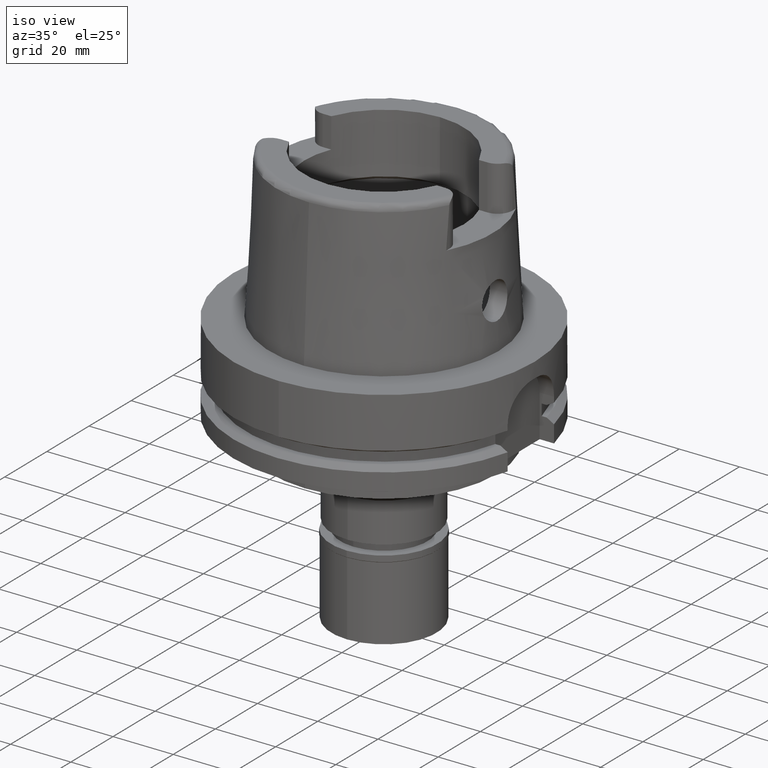
[diagram: clean part render]
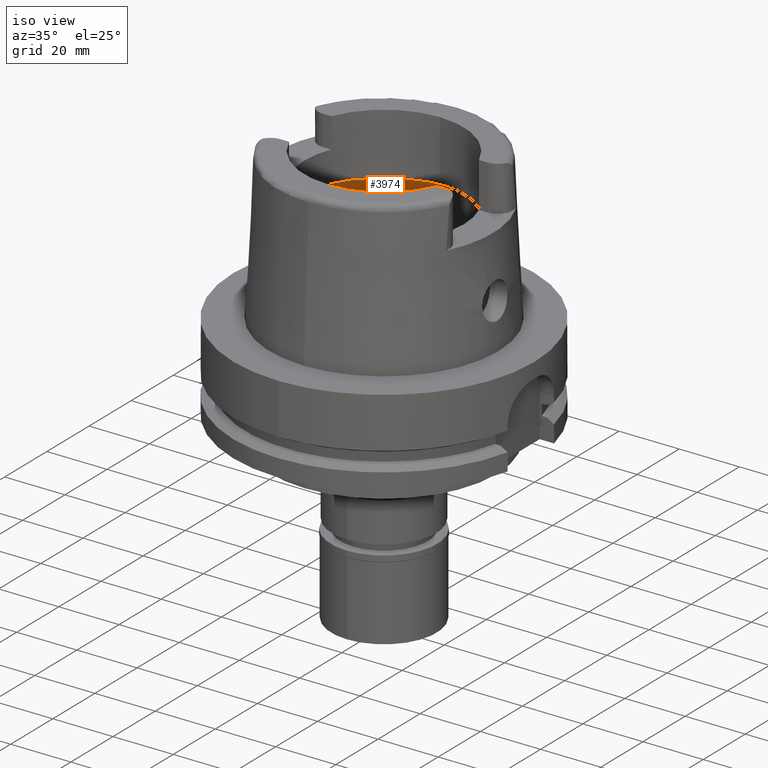
[diagram: same view with one face highlighted and labeled with its STEP entity id]
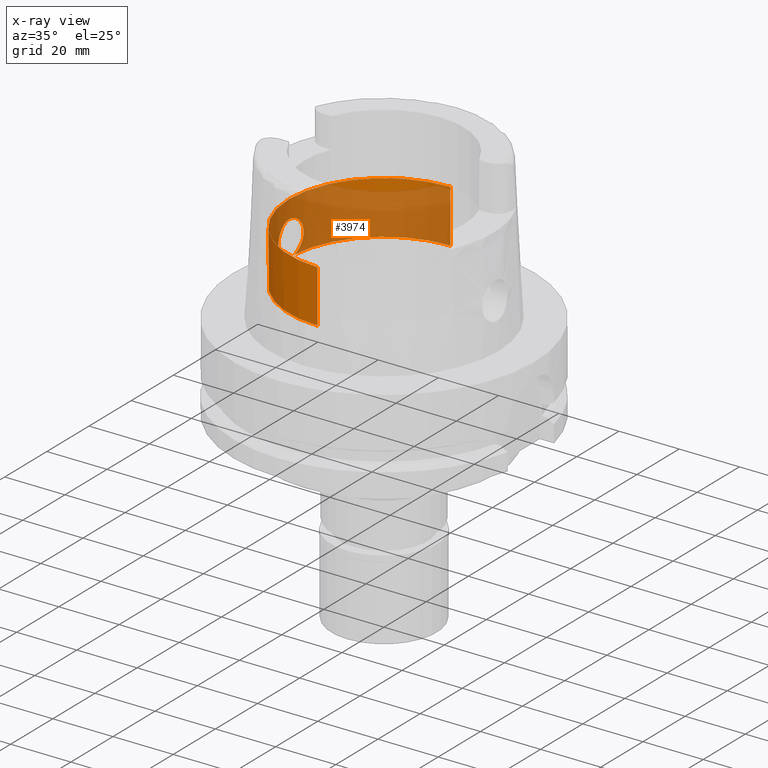
[diagram: x-ray of the same camera — body ghosted, the highlighted face saturated]
A machine part, iso view. The second image highlights one B-rep face of the part: STEP entity #3974.
The next image is the same camera in x-ray: the body ghosted, the highlighted face saturated — about 68% of this face is hidden behind the body in this view.
In plain terms, the highlighted cylindrical surface (partial cylindrical patch) has radius 31.5 mm, axis along (0, 0, 1).
Its self-contained STEP definition (entity closure, byte-faithful):
#9 = FACE_OUTER_BOUND ( 'NONE', #5130, .T. ) ;
#18 = CARTESIAN_POINT ( 'NONE',  ( -31.49468644051406940, -0.6600454947056628718, 20.97327599051144276 ) ) ;
#41 = CARTESIAN_POINT ( 'NONE',  ( -31.20652100758928427, -4.300627620504848814, 19.19795939117561900 ) ) ;
#72 = CARTESIAN_POINT ( 'NONE',  ( -31.44524542998461314, -1.855567973153091854, 20.70615959649734350 ) ) ;
#101 = CARTESIAN_POINT ( 'NONE',  ( -31.27636264282918077, -3.746839878336114982, 19.68629373320086984 ) ) ;
#103 = CARTESIAN_POINT ( 'NONE',  ( -31.08045232837232064, 5.124108468036652653, 18.12146298428985958 ) ) ;
#118 = CARTESIAN_POINT ( 'NONE',  ( -31.50000000000000000, 0.0000000000000000000, 21.00000000000000000 ) ) ;
#124 = CARTESIAN_POINT ( 'NONE',  ( -31.39148165064910145, -2.622849304399081038, 9.597683857181619871 ) ) ;
#126 = CARTESIAN_POINT ( 'NONE',  ( -30.94717698794870486, 5.875673112436035517, 16.21513602681367061 ) ) ;
#151 = CARTESIAN_POINT ( 'NONE',  ( -31.15164714185233663, 4.671955733681195433, 18.76497636839761540 ) ) ;
#182 = CARTESIAN_POINT ( 'NONE',  ( -31.04517455347458466, -5.333672063953171616, 12.25191874798690428 ) ) ;
#184 = CARTESIAN_POINT ( 'NONE',  ( -31.02203002786776054, 5.468953737495468204, 17.47451872612846202 ) ) ;
#208 = CARTESIAN_POINT ( 'NONE',  ( -31.17027987182837023, 4.545726517977771053, 18.91618835111207986 ) ) ;
#244 = AXIS2_PLACEMENT_3D ( 'NONE', #4041, #5413, #1569 ) ;
#261 = LINE ( 'NONE', #2016, #782 ) ;
#283 = CARTESIAN_POINT ( 'NONE',  ( -31.26933825255434485, 3.804432712328855715, 19.63965587572132776 ) ) ;
#309 = CIRCLE ( 'NONE', #1827, 31.50000000000000000 ) ;
#335 = CARTESIAN_POINT ( 'NONE',  ( 0.0000000000000000000, 0.0000000000000000000, -85.45000000000000284 ) ) ;
#395 = CARTESIAN_POINT ( 'NONE',  ( -31.14017704450538204, -4.746532300470788002, 18.67423543242131245 ) ) ;
#427 = CARTESIAN_POINT ( 'NONE',  ( -30.94709211533567483, -5.876117804885137019, 16.21299367275693015 ) ) ;
#447 = CIRCLE ( 'NONE', #2771, 31.50000000000000000 ) ;
#461 = CARTESIAN_POINT ( 'NONE',  ( -31.23935720786402825, -4.052724198441658210, 19.43774687240028243 ) ) ;
#519 = CARTESIAN_POINT ( 'NONE',  ( -30.95204032685515827, -5.850111470413988712, 16.33371732093431206 ) ) ;
#522 = CARTESIAN_POINT ( 'NONE',  ( -31.09978699592496554, 5.012223274598265554, 11.69742067420033393 ) ) ;
#549 = CARTESIAN_POINT ( 'NONE',  ( -31.40918884336000616, -2.390158196043999705, 9.496624327025999790 ) ) ;
#551 = CARTESIAN_POINT ( 'NONE',  ( -31.04518756500798204, 5.333599716063099905, 12.25177938394907429 ) ) ;
#577 = CARTESIAN_POINT ( 'NONE',  ( -30.97629757941105311, 5.723226995904576064, 16.83354071632904692 ) ) ;
#602 = CARTESIAN_POINT ( 'NONE',  ( -30.99218077062603527, 5.635534246175447848, 12.91275586968483502 ) ) ;
#630 = CARTESIAN_POINT ( 'NONE',  ( -31.14924036004105190, -4.695482276926491672, 11.25898190106387275 ) ) ;
#633 = CARTESIAN_POINT ( 'NONE',  ( -30.94201439793485875, 5.902945666998585139, 13.92002647098651202 ) ) ;
#655 = CARTESIAN_POINT ( 'NONE',  ( -31.18852596536192578, -4.421805925675936777, 10.94287546114234111 ) ) ;
#683 = CARTESIAN_POINT ( 'NONE',  ( -31.27230093115360177, 3.780430856862598166, 19.65923644008503857 ) ) ;
#709 = CARTESIAN_POINT ( 'NONE',  ( -31.30987125798585780, 3.474931509407817476, 19.90611039168592100 ) ) ;
#731 = CARTESIAN_POINT ( 'NONE',  ( -31.43292578855548669, 2.053063081826126623, 20.63786886506169793 ) ) ;
#736 = LINE ( 'NONE', #1599, #3484 ) ;
#754 = CARTESIAN_POINT ( 'NONE',  ( -31.25908688078983388, 3.886879296894486746, 19.57114722000008911 ) ) ;
#782 = VECTOR ( 'NONE', #1520, 1000.000000000000000 ) ;
#817 = CARTESIAN_POINT ( 'NONE',  ( -30.94815925833596282, -5.870505071417088772, 16.23986343966526036 ) ) ;
#843 = CARTESIAN_POINT ( 'NONE',  ( -30.98609954830845226, -5.668915743430571474, 16.97298943556175743 ) ) ;
#844 = DIRECTION ( 'NONE',  ( 0.0000000000000000000, -4.980251297749999745E-14, 1.000000000000000000 ) ) ;
#874 = CARTESIAN_POINT ( 'NONE',  ( -31.27401061059180520, -3.766443886681985376, 19.67055226672428958 ) ) ;
#904 = CARTESIAN_POINT ( 'NONE',  ( -31.07990292945971333, -5.127433926419683097, 18.11601709967625951 ) ) ;
#931 = CARTESIAN_POINT ( 'NONE',  ( -31.28796342650734630, -3.648789918520191300, 19.76346963162040993 ) ) ;
#933 = CARTESIAN_POINT ( 'NONE',  ( -30.93370143692390783, 5.946638204858383681, 15.80298496135365127 ) ) ;
#960 = CARTESIAN_POINT ( 'NONE',  ( -31.23702435164256741, 4.061563625462893512, 10.58368020677053067 ) ) ;
#990 = CARTESIAN_POINT ( 'NONE',  ( -31.08612902596978955, 5.094440502647507252, 11.82743776079524523 ) ) ;
#1009 = CARTESIAN_POINT ( 'NONE',  ( -31.08512885622776523, -5.105021580237604439, 11.82893627629948696 ) ) ;
#1011 = CARTESIAN_POINT ( 'NONE',  ( -31.20786932598961627, 4.280700128201909038, 19.20773368896920275 ) ) ;
#1033 = CARTESIAN_POINT ( 'NONE',  ( -31.30906248329323915, -3.469223213293763930, 10.09274890671794367 ) ) ;
#1036 = CARTESIAN_POINT ( 'NONE',  ( -31.04979418184917606, 5.307644725518416706, 17.79955785724262185 ) ) ;
#1068 = CARTESIAN_POINT ( 'NONE',  ( -31.43628422217685525, 2.000932791778182729, 20.65653503280562120 ) ) ;
#1092 = CARTESIAN_POINT ( 'NONE',  ( 0.0000000000000000000, -31.50000000000000000, 9.496624327025999790 ) ) ;
#1155 = B_SPLINE_CURVE_WITH_KNOTS ( 'NONE', 3,
 ( #2615, #4342, #2193, #1773, #2927, #4645, #2500, #1238, #2961, #1903, #960, #4817, #5215, #1357, #4847, #522, #990, #3154, #2698, #2752, #2671, #2641, #4400, #4792, #4447, #551, #3546, #2253, #602, #2720, #1464, #5264, #633, #5300, #1409, #2276, #3977, #3948, #4424, #3068, #4367, #933, #4000, #1441, #2224, #2302, #4034, #126, #4895, #577, #3179, #184, #1876, #1036, #4477, #3607, #5239, #5328, #2332, #1847, #103, #3578, #1819, #3127, #1798, #151, #3525, #4063, #208, #1381, #3090, #4870, #1011, #4589, #2413, #754, #4120, #283, #4146, #683, #709, #1173, #5381, #5408, #4088, #2459, #4563, #731, #2784, #5351, #1068, #1930, #1991, #4506 ),
 .UNSPECIFIED., .F., .F.,
 ( 4, 2, 2, 2, 1, 1, 2, 2, 2, 2, 2, 1, 1, 1, 1, 2, 2, 2, 2, 1, 1, 2, 2, 2, 2, 1, 1, 1, 2, 2, 2, 2, 2, 1, 1, 1, 2, 2, 2, 2, 1, 1, 2, 2, 2, 1, 1, 1, 2, 2, 2, 2, 1, 1, 1, 2, 2, 4 ),
 ( 0.0000000000000000000, 0.06250000000002729761, 0.09375000000004103662, 0.1093750000000478090, 0.1171875000000511396, 0.1210937500000529021, 0.1230468750000538458, 0.1250000000000547895, 0.1875000000000871248, 0.2187500000001033063, 0.2343750000001116052, 0.2421875000001158795, 0.2460937500001181000, 0.2480468750001191269, 0.2490234375001196543, 0.2495117187501197098, 0.2500000000001197931, 0.3125000000001008083, 0.3437500000000913158, 0.3593750000000867084, 0.3671875000000843769, 0.3710937500000833777, 0.3750000000000823230, 0.4375000000000653366, 0.4687500000000570100, 0.4843750000000529576, 0.4921875000000506262, 0.4960937500000494049, 0.4980468750000488498, 0.5000000000000481837, 0.5625000000000489608, 0.5937500000000492939, 0.6093750000000490719, 0.6171875000000490719, 0.6210937500000489608, 0.6230468750000489608, 0.6240234375000487388, 0.6250000000000485167, 0.6562500000000418554, 0.6718750000000381917, 0.6796875000000364153, 0.6835937500000353051, 0.6855468750000347500, 0.6875000000000341949, 0.7187500000000330846, 0.7343750000000323075, 0.7421875000000319744, 0.7460937500000317524, 0.7480468750000316414, 0.7500000000000314193, 0.8125000000000206501, 0.8437500000000152101, 0.8593750000000123235, 0.8671875000000109912, 0.8710937500000103251, 0.8730468750000102141, 0.8750000000000099920, 1.000000000000000000 ),
 .UNSPECIFIED. ) ;
#1173 = CARTESIAN_POINT ( 'NONE',  ( -31.34171231235570332, 3.171484424890949061, 20.10473325925496724 ) ) ;
#1236 = CARTESIAN_POINT ( 'NONE',  ( -30.94929144269133303, -5.864552954792189077, 16.26793568257465239 ) ) ;
#1238 = CARTESIAN_POINT ( 'NONE',  ( -31.25700145807026331, 3.904305459107029641, 10.44379346363824901 ) ) ;
#1262 = DIRECTION ( 'NONE',  ( 0.0000000000000000000, 0.0000000000000000000, -1.000000000000000000 ) ) ;
#1269 = CARTESIAN_POINT ( 'NONE',  ( -31.46014830385537309, -1.583260562109054526, 20.78798815535644451 ) ) ;
#1283 = EDGE_CURVE ( 'NONE', #1461, #5158, #447, .T. ) ;
#1293 = CARTESIAN_POINT ( 'NONE',  ( -31.27987526755534375, -3.717429863153318248, 19.70975714552560731 ) ) ;
#1325 = CARTESIAN_POINT ( 'NONE',  ( -31.10503846080714396, -4.972285585372452132, 18.35995831779197474 ) ) ;
#1355 = CARTESIAN_POINT ( 'NONE',  ( -31.11662495128415173, -4.898526144868738719, 18.46580947703500186 ) ) ;
#1357 = CARTESIAN_POINT ( 'NONE',  ( -31.18536093560938482, 4.455197651179235052, 10.95194643721960226 ) ) ;
#1379 = CARTESIAN_POINT ( 'NONE',  ( -31.03365569934316426, -5.400408291021908447, 12.38480855497167532 ) ) ;
#1381 = CARTESIAN_POINT ( 'NONE',  ( -31.17269419759469429, 4.529133811893659711, 18.93536627159326358 ) ) ;
#1409 = CARTESIAN_POINT ( 'NONE',  ( -30.93594940397671778, 5.934465969104229188, 14.11541048519231900 ) ) ;
#1410 = ORIENTED_EDGE ( 'NONE', *, *, #2448, .F. ) ;
#1441 = CARTESIAN_POINT ( 'NONE',  ( -30.94203852206575078, 5.902744183301644298, 16.07741215369863852 ) ) ;
#1461 = VERTEX_POINT ( 'NONE', #5251 ) ;
#1462 = CARTESIAN_POINT ( 'NONE',  ( -30.95594804819575074, -5.831170078798176171, 13.54648142423479484 ) ) ;
#1464 = CARTESIAN_POINT ( 'NONE',  ( -30.95645738249756462, 5.827459834601833144, 13.56218151347652956 ) ) ;
#1520 = DIRECTION ( 'NONE',  ( 0.0000000000000000000, 4.980251297749999745E-14, 1.000000000000000000 ) ) ;
#1569 = DIRECTION ( 'NONE',  ( -0.9971171061384295209, 0.07587803796965221503, 0.0000000000000000000 ) ) ;
#1599 = CARTESIAN_POINT ( 'NONE',  ( 0.0000000000000000000, 31.50000000000000000, 9.496624327025999790 ) ) ;
#1682 = CARTESIAN_POINT ( 'NONE',  ( -30.94741467073410135, -5.874420937595340675, 16.22117557725898607 ) ) ;
#1705 = DIRECTION ( 'NONE',  ( 0.0000000000000000000, 0.0000000000000000000, 1.000000000000000000 ) ) ;
#1712 = CARTESIAN_POINT ( 'NONE',  ( -30.93383822146184414, -5.945492396760784892, 14.19284567887579840 ) ) ;
#1739 = CARTESIAN_POINT ( 'NONE',  ( -31.45367240323188796, -1.709128341393223227, 20.75259253078951005 ) ) ;
#1771 = CARTESIAN_POINT ( 'NONE',  ( -31.30795952077320621, -3.472431625062612159, 19.89404409351084624 ) ) ;
#1773 = CARTESIAN_POINT ( 'NONE',  ( -31.32349421945763979, 3.326977616146763683, 10.00394166346461411 ) ) ;
#1798 = CARTESIAN_POINT ( 'NONE',  ( -31.13842003553979509, 4.759732663390746410, 18.65428716733203984 ) ) ;
#1819 = CARTESIAN_POINT ( 'NONE',  ( -31.10650468080083897, 4.964778793398989976, 18.37349596823237263 ) ) ;
#1827 = AXIS2_PLACEMENT_3D ( 'NONE', #3820, #1262, #2888 ) ;
#1847 = CARTESIAN_POINT ( 'NONE',  ( -31.07980420771849239, 5.128043619271326570, 18.11499662260633059 ) ) ;
#1873 = CARTESIAN_POINT ( 'NONE',  ( -30.98388071451327619, -5.680281154066573635, 13.06009763254756884 ) ) ;
#1876 = CARTESIAN_POINT ( 'NONE',  ( -31.04260824686617681, 5.349746934620963401, 17.71815787119146179 ) ) ;
#1903 = CARTESIAN_POINT ( 'NONE',  ( -31.24085124214130715, 4.032036102940400824, 10.55658598179121554 ) ) ;
#1930 = CARTESIAN_POINT ( 'NONE',  ( -31.47898036195524796, 1.327503304833642650, 20.89336680146315217 ) ) ;
#1991 = CARTESIAN_POINT ( 'NONE',  ( -31.50000000000000000, 0.6498053776088208444, 21.00000000000000000 ) ) ;
#2016 = CARTESIAN_POINT ( 'NONE',  ( 0.0000000000000000000, -31.50000000000000000, 9.496624327025999790 ) ) ;
#2100 = CARTESIAN_POINT ( 'NONE',  ( -30.92613444811745183, -5.986400588389713562, 15.52780896364699181 ) ) ;
#2132 = CARTESIAN_POINT ( 'NONE',  ( -31.39716637267921229, -2.554710157625146749, 20.43975329637592608 ) ) ;
#2160 = ORIENTED_EDGE ( 'NONE', *, *, #3972, .T. ) ;
#2193 = CARTESIAN_POINT ( 'NONE',  ( -31.36782107533199593, 2.891018643074693362, 9.731268933887402994 ) ) ;
#2224 = CARTESIAN_POINT ( 'NONE',  ( -30.94471645955688288, 5.888636474622442663, 16.15098327757463892 ) ) ;
#2253 = CARTESIAN_POINT ( 'NONE',  ( -31.01593959991766525, 5.503665356997867519, 12.58225702735309603 ) ) ;
#2274 = CARTESIAN_POINT ( 'NONE',  ( -31.13176651340489087, -4.810074858820290622, 11.40940082003571199 ) ) ;
#2276 = CARTESIAN_POINT ( 'NONE',  ( -30.93486335740178106, 5.940124237766928772, 14.15424058500201632 ) ) ;
#2300 = CARTESIAN_POINT ( 'NONE',  ( -31.22685469610360443, -4.139113351453512557, 10.65627274408642755 ) ) ;
#2302 = CARTESIAN_POINT ( 'NONE',  ( -30.94591243324782326, 5.882335519597387652, 16.18247344572034763 ) ) ;
#2332 = CARTESIAN_POINT ( 'NONE',  ( -31.07878861961194872, 5.134204424624162932, 18.10483175810990986 ) ) ;
#2413 = CARTESIAN_POINT ( 'NONE',  ( -31.24473887855333487, 4.000517461547971720, 19.47311214296152926 ) ) ;
#2448 = EDGE_CURVE ( 'NONE', #4308, #5079, #3331, .T. ) ;
#2459 = CARTESIAN_POINT ( 'NONE',  ( -31.42012672215657787, 2.242248292184319869, 20.56623014344636502 ) ) ;
#2500 = CARTESIAN_POINT ( 'NONE',  ( -31.27140842950219124, 3.786874586289304290, 10.34488911542267431 ) ) ;
#2520 = CYLINDRICAL_SURFACE ( 'NONE', #2819, 31.50000000000000000 ) ;
#2521 = CARTESIAN_POINT ( 'NONE',  ( -31.40918884336000616, 2.390158196043999705, 9.496624327025999790 ) ) ;
#2525 = CARTESIAN_POINT ( 'NONE',  ( -30.96378076329180473, -5.788289250639437000, 16.58184719945438346 ) ) ;
#2551 = CARTESIAN_POINT ( 'NONE',  ( -30.93223130495509565, -5.953905832141606957, 14.25740174174625174 ) ) ;
#2584 = CARTESIAN_POINT ( 'NONE',  ( -31.50000000000000000, 0.0000000000000000000, 21.00000000000000000 ) ) ;
#2613 = CARTESIAN_POINT ( 'NONE',  ( -31.43650139800056209, -1.997495828628162773, 20.65774069109803435 ) ) ;
#2615 = CARTESIAN_POINT ( 'NONE',  ( -31.40918884336000616, 2.390158196043999705, 9.496624327025999790 ) ) ;
#2639 = CARTESIAN_POINT ( 'NONE',  ( -31.01915017969999155, -5.486385384685982025, 17.45290592696035503 ) ) ;
#2641 = CARTESIAN_POINT ( 'NONE',  ( -31.04850011745141813, 5.314376854699960795, 12.21473573738629881 ) ) ;
#2669 = CARTESIAN_POINT ( 'NONE',  ( -31.22256165172294828, -4.171558558338042566, 10.68726830910274650 ) ) ;
#2671 = CARTESIAN_POINT ( 'NONE',  ( -31.05226995741741902, 5.292553792095582743, 12.17331238083769485 ) ) ;
#2696 = CARTESIAN_POINT ( 'NONE',  ( -31.04562722139407782, -5.331037979714587038, 12.24681233616359144 ) ) ;
#2698 = CARTESIAN_POINT ( 'NONE',  ( -31.06313410853661239, 5.229627001597104474, 12.05814847437388337 ) ) ;
#2718 = CARTESIAN_POINT ( 'NONE',  ( -31.20452329170475281, -4.305544797498906284, 10.82083252444149224 ) ) ;
#2720 = CARTESIAN_POINT ( 'NONE',  ( -30.96440537365845458, 5.785447828781178359, 13.40076518444319476 ) ) ;
#2747 = CARTESIAN_POINT ( 'NONE',  ( -31.02180097006672455, -5.468465866573166245, 12.52812534895325314 ) ) ;
#2752 = CARTESIAN_POINT ( 'NONE',  ( -31.05577131272167790, 5.272304599487643628, 12.13579392258745138 ) ) ;
#2771 = AXIS2_PLACEMENT_3D ( 'NONE', #3454, #4691, #4633 ) ;
#2774 = VERTEX_POINT ( 'NONE', #4527 ) ;
#2780 = CARTESIAN_POINT ( 'NONE',  ( -31.01237316506943031, -5.521805440622297390, 12.65106730445606509 ) ) ;
#2784 = CARTESIAN_POINT ( 'NONE',  ( -31.43466007980396526, 2.026249571630781343, 20.64751295059762271 ) ) ;
#2819 = AXIS2_PLACEMENT_3D ( 'NONE', #335, #1705, #3431 ) ;
#2834 = CARTESIAN_POINT ( 'NONE',  ( -31.40918884336000616, -2.390158196043999705, 9.496624327025999790 ) ) ;
#2888 = DIRECTION ( 'NONE',  ( 0.0000000000000000000, -1.000000000000000000, 0.0000000000000000000 ) ) ;
#2927 = CARTESIAN_POINT ( 'NONE',  ( -31.30724070862692798, 3.477866724378012364, 10.10695117549598976 ) ) ;
#2937 = ORIENTED_EDGE ( 'NONE', *, *, #1283, .T. ) ;
#2961 = CARTESIAN_POINT ( 'NONE',  ( -31.24965941995998264, 3.963184621887910097, 10.49466748885878253 ) ) ;
#2986 = CARTESIAN_POINT ( 'NONE',  ( -31.27265209056394468, -3.777709567707046467, 19.66144031637864487 ) ) ;
#3011 = CARTESIAN_POINT ( 'NONE',  ( -31.34098551244852260, -3.160810807882615148, 20.10334621398456179 ) ) ;
#3040 = CARTESIAN_POINT ( 'NONE',  ( -31.08534261813155197, -5.094287805680574266, 18.17002218991891027 ) ) ;
#3066 = CARTESIAN_POINT ( 'NONE',  ( -31.35601783981819324, -3.006815719328559400, 20.19503842225686441 ) ) ;
#3068 = CARTESIAN_POINT ( 'NONE',  ( -30.92535214901938900, 5.990466605842864389, 15.37852798002795041 ) ) ;
#3090 = CARTESIAN_POINT ( 'NONE',  ( -31.17410825468628133, 4.519387171781214185, 18.94654969553063495 ) ) ;
#3104 = EDGE_CURVE ( 'NONE', #3409, #2774, #5546, .T. ) ;
#3127 = CARTESIAN_POINT ( 'NONE',  ( -31.13008152591636346, 4.813936277585570522, 18.58237259286520171 ) ) ;
#3154 = CARTESIAN_POINT ( 'NONE',  ( -31.06852275268848018, 5.198271954122639649, 12.00290349001857670 ) ) ;
#3177 = CARTESIAN_POINT ( 'NONE',  ( -31.17834307136099170, -4.493934286040984993, 11.02316115612916114 ) ) ;
#3179 = CARTESIAN_POINT ( 'NONE',  ( -31.00961732980295693, 5.538953753483943920, 17.31285343635041940 ) ) ;
#3295 = EDGE_CURVE ( 'NONE', #2774, #1461, #736, .T. ) ;
#3331 = B_SPLINE_CURVE_WITH_KNOTS ( 'NONE', 3,
 ( #2584, #3914, #18, #4733, #3860, #1269, #1739, #72, #4673, #3886, #5180, #3377, #2613, #4340, #2132, #3066, #3011, #5213, #1771, #3500, #931, #1293, #101, #874, #2986, #461, #41, #3464, #395, #1355, #1325, #5092, #3040, #4700, #4765, #904, #3946, #2639, #843, #5148, #2525, #4365, #519, #1236, #817, #1682, #427, #4254, #2100, #3828, #5550, #3410, #5122, #3438, #2551, #4283, #1712, #4921, #1462, #1873, #4032, #2780, #2747, #1379, #5237, #5298, #3604, #182, #2696, #4503, #4085, #1009, #2274, #630, #3177, #655, #2718, #5326, #2669, #2300, #3998, #4398, #4893, #1033, #3576, #124, #549 ),
 .UNSPECIFIED., .F., .F.,
 ( 4, 2, 2, 1, 1, 1, 1, 2, 2, 2, 2, 2, 1, 1, 2, 2, 2, 2, 1, 1, 1, 2, 2, 2, 2, 1, 1, 1, 2, 2, 2, 2, 1, 1, 2, 2, 2, 2, 1, 1, 1, 1, 1, 2, 2, 2, 2, 2, 1, 1, 2, 2, 2, 4 ),
 ( 0.0000000000000000000, 0.06250000000001081080, 0.09375000000001619538, 0.1093750000000188460, 0.1171875000000201922, 0.1210937500000207750, 0.1230468750000210248, 0.1240234375000211775, 0.1250000000000213163, 0.1875000000000345557, 0.2187500000000413003, 0.2343750000000445199, 0.2421875000000462130, 0.2460937500000470457, 0.2480468750000475731, 0.2500000000000481282, 0.3125000000000746070, 0.3437500000000879852, 0.3593750000000946465, 0.3671875000000976441, 0.3710937500000988654, 0.3730468750000991984, 0.3750000000000995870, 0.4375000000001189604, 0.4687500000001286748, 0.4843750000001331713, 0.4921875000001355027, 0.4960937500001362799, 0.4980468750001366685, 0.5000000000001370015, 0.5625000000001478817, 0.5937500000001533218, 0.6093750000001558753, 0.6171875000001570966, 0.6210937500001576517, 0.6250000000001582068, 0.6875000000001643130, 0.7187500000001674216, 0.7343750000001688649, 0.7421875000001696421, 0.7460937500001699751, 0.7480468750001703082, 0.7490234375001705303, 0.7495117187501705303, 0.7500000000001705303, 0.8125000000001301181, 0.8437500000001099121, 0.8593750000000998090, 0.8671875000000947020, 0.8710937500000922595, 0.8730468750000910383, 0.8750000000000898170, 0.9375000000000449640, 1.000000000000000000 ),
 .UNSPECIFIED. ) ;
#3377 = CARTESIAN_POINT ( 'NONE',  ( -31.43690018384860707, -1.991219061992846040, 20.65995381132325548 ) ) ;
#3409 = VERTEX_POINT ( 'NONE', #2521 ) ;
#3410 = CARTESIAN_POINT ( 'NONE',  ( -30.92596054561649410, -5.986869443970543436, 14.59431774758367517 ) ) ;
#3431 = DIRECTION ( 'NONE',  ( 0.0000000000000000000, 1.000000000000000000, 0.0000000000000000000 ) ) ;
#3438 = CARTESIAN_POINT ( 'NONE',  ( -30.93075452679543247, -5.961645088721196473, 14.32035476011680686 ) ) ;
#3454 = CARTESIAN_POINT ( 'NONE',  ( 0.0000000000000000000, 0.0000000000000000000, 27.11662432702999936 ) ) ;
#3464 = CARTESIAN_POINT ( 'NONE',  ( -31.15638392300914461, -4.639233824370879056, 18.80881540217760772 ) ) ;
#3484 = VECTOR ( 'NONE', #844, 1000.000000000000000 ) ;
#3500 = CARTESIAN_POINT ( 'NONE',  ( -31.29471105062195946, -3.589966099160999402, 19.80775474123478830 ) ) ;
#3525 = CARTESIAN_POINT ( 'NONE',  ( -31.15844053047796791, 4.626449191065708177, 18.82102370477945641 ) ) ;
#3546 = CARTESIAN_POINT ( 'NONE',  ( -31.04516689537096497, 5.333719709569703760, 12.25201121742783705 ) ) ;
#3576 = CARTESIAN_POINT ( 'NONE',  ( -31.36791494009358416, -2.890011759132415037, 9.730801291633557781 ) ) ;
#3578 = CARTESIAN_POINT ( 'NONE',  ( -31.09270502906355205, 5.049671679761825516, 18.24345811306707787 ) ) ;
#3604 = CARTESIAN_POINT ( 'NONE',  ( -31.04449650653222648, -5.337616494902577280, 12.25957888860989975 ) ) ;
#3607 = CARTESIAN_POINT ( 'NONE',  ( -31.06681967326774085, 5.206432106331525311, 17.98277394321644351 ) ) ;
#3820 = CARTESIAN_POINT ( 'NONE',  ( 0.0000000000000000000, 0.0000000000000000000, 9.496624327025999790 ) ) ;
#3828 = CARTESIAN_POINT ( 'NONE',  ( -30.92305064634131995, -6.002379976711671006, 15.01811606650085018 ) ) ;
#3860 = CARTESIAN_POINT ( 'NONE',  ( -31.47210381269876223, -1.331344791715846965, 20.85299962599319912 ) ) ;
#3886 = CARTESIAN_POINT ( 'NONE',  ( -31.43854380686342154, -1.965159683637604626, 20.66907053172397823 ) ) ;
#3914 = CARTESIAN_POINT ( 'NONE',  ( -31.50000000000000711, -0.3265951356675619310, 20.99999999999999645 ) ) ;
#3946 = CARTESIAN_POINT ( 'NONE',  ( -31.04640734177065298, -5.330442608352474743, 17.78046875905122448 ) ) ;
#3948 = CARTESIAN_POINT ( 'NONE',  ( -30.92513526102003851, 5.990966510997227878, 14.52808313722655065 ) ) ;
#3972 = EDGE_CURVE ( 'NONE', #5136, #5079, #309, .T. ) ;
#3974 = ADVANCED_FACE ( 'NONE', ( #9 ), #2520, .F. ) ;
#3977 = CARTESIAN_POINT ( 'NONE',  ( -30.93438270671247636, 5.942631215140577794, 14.17200177641276504 ) ) ;
#3998 = CARTESIAN_POINT ( 'NONE',  ( -31.22973178788531357, -4.117303870930185461, 10.63559458295056537 ) ) ;
#4000 = CARTESIAN_POINT ( 'NONE',  ( -30.93713331823454737, 5.928579567888027313, 15.92991946933090119 ) ) ;
#4032 = CARTESIAN_POINT ( 'NONE',  ( -30.99449541044200274, -5.622045063270939558, 12.89669549620698064 ) ) ;
#4034 = CARTESIAN_POINT ( 'NONE',  ( -30.94672047930729164, 5.878078287982638983, 16.20345762505287368 ) ) ;
#4041 = CARTESIAN_POINT ( 'NONE',  ( 0.0000000000000000000, 0.0000000000000000000, 9.496624327025999790 ) ) ;
#4063 = CARTESIAN_POINT ( 'NONE',  ( -31.16668086261253734, 4.570397163254392936, 18.88748961506555091 ) ) ;
#4085 = CARTESIAN_POINT ( 'NONE',  ( -31.06174892841819357, -5.237171747984205261, 12.06547958367361773 ) ) ;
#4088 = CARTESIAN_POINT ( 'NONE',  ( -31.41205979546063531, 2.351912828442952463, 20.52041466359668576 ) ) ;
#4120 = CARTESIAN_POINT ( 'NONE',  ( -31.26626258548799342, 3.829281940744416524, 19.61924281484150256 ) ) ;
#4146 = CARTESIAN_POINT ( 'NONE',  ( -31.27138877838806508, 3.787830209729858399, 19.65322009043319440 ) ) ;
#4254 = CARTESIAN_POINT ( 'NONE',  ( -30.93367005005681492, -5.946768138581487229, 15.86763720028163149 ) ) ;
#4283 = CARTESIAN_POINT ( 'NONE',  ( -30.93325863415077492, -5.948525657680972856, 14.21546871886297048 ) ) ;
#4308 = VERTEX_POINT ( 'NONE', #118 ) ;
#4340 = CARTESIAN_POINT ( 'NONE',  ( -31.41933412892256783, -2.266784765893084419, 20.56244489912173989 ) ) ;
#4342 = CARTESIAN_POINT ( 'NONE',  ( -31.39146074375786455, 2.623124042899763975, 9.597803178216235409 ) ) ;
#4365 = CARTESIAN_POINT ( 'NONE',  ( -30.95796657785468753, -5.818975759678393089, 16.46637156627228293 ) ) ;
#4367 = CARTESIAN_POINT ( 'NONE',  ( -30.92786777979071644, 5.977300902754803857, 15.54866845042554857 ) ) ;
#4392 = ORIENTED_EDGE ( 'NONE', *, *, #3295, .T. ) ;
#4398 = CARTESIAN_POINT ( 'NONE',  ( -31.23134568345615847, -4.105029714567443477, 10.62405312732783713 ) ) ;
#4400 = CARTESIAN_POINT ( 'NONE',  ( -31.04669396610730558, 5.324850587917924649, 12.23485300459620184 ) ) ;
#4424 = CARTESIAN_POINT ( 'NONE',  ( -30.92192567865784270, 6.008204369786938059, 14.86818725250046036 ) ) ;
#4447 = CARTESIAN_POINT ( 'NONE',  ( -31.04543620940964743, 5.332154695725058957, 12.24897677462858958 ) ) ;
#4477 = CARTESIAN_POINT ( 'NONE',  ( -31.06106287729898696, 5.240786949117546278, 17.92169579800023271 ) ) ;
#4503 = CARTESIAN_POINT ( 'NONE',  ( -31.04595843734289318, -5.329109896930145140, 12.24308322398316839 ) ) ;
#4506 = CARTESIAN_POINT ( 'NONE',  ( -31.50000000000000000, 0.0000000000000000000, 21.00000000000000000 ) ) ;
#4527 = CARTESIAN_POINT ( 'NONE',  ( 0.0000000000000000000, 31.50000000000000000, 9.496624327025999790 ) ) ;
#4563 = CARTESIAN_POINT ( 'NONE',  ( -31.42878496216718887, 2.115845638324524991, 20.61478128237772367 ) ) ;
#4589 = CARTESIAN_POINT ( 'NONE',  ( -31.23244643176747459, 4.095185673448906272, 19.38597861328544525 ) ) ;
#4633 = DIRECTION ( 'NONE',  ( 0.0000000000000000000, 1.000000000000000000, 0.0000000000000000000 ) ) ;
#4645 = CARTESIAN_POINT ( 'NONE',  ( -31.28064360407196887, 3.709026607038706569, 10.28274522988656692 ) ) ;
#4669 = CARTESIAN_POINT ( 'NONE',  ( 0.0000000000000000000, -31.50000000000000000, 27.11662432702999936 ) ) ;
#4673 = CARTESIAN_POINT ( 'NONE',  ( -31.44081400439771556, -1.928654095396501900, 20.68164981285573845 ) ) ;
#4691 = DIRECTION ( 'NONE',  ( 0.0000000000000000000, 0.0000000000000000000, 1.000000000000000000 ) ) ;
#4700 = CARTESIAN_POINT ( 'NONE',  ( -31.08257039172496761, -5.111203625329078903, 18.14256472688798993 ) ) ;
#4733 = CARTESIAN_POINT ( 'NONE',  ( -31.47874576205620656, -1.163164667279158682, 20.88863052714880197 ) ) ;
#4765 = CARTESIAN_POINT ( 'NONE',  ( -31.08072618987338132, -5.122431619850826401, 18.12422948296218905 ) ) ;
#4792 = CARTESIAN_POINT ( 'NONE',  ( -31.04581058259499216, 5.329979537602240747, 12.24476213498657096 ) ) ;
#4817 = CARTESIAN_POINT ( 'NONE',  ( -31.23446154527723095, 4.081251413850779386, 10.60186784001495930 ) ) ;
#4847 = CARTESIAN_POINT ( 'NONE',  ( -31.14652226909332455, 4.716982685156529520, 11.27606071767688611 ) ) ;
#4870 = CARTESIAN_POINT ( 'NONE',  ( -31.19149497252957559, 4.399278007508950594, 19.08359760475328670 ) ) ;
#4893 = CARTESIAN_POINT ( 'NONE',  ( -31.27377673704841854, -3.781460887684894523, 10.32187396020902170 ) ) ;
#4895 = CARTESIAN_POINT ( 'NONE',  ( -30.95930887088638883, 5.811754255580821926, 16.52176294006379109 ) ) ;
#4921 = CARTESIAN_POINT ( 'NONE',  ( -30.94254149927559183, -5.899972280053251694, 13.86550485442172764 ) ) ;
#5008 = EDGE_CURVE ( 'NONE', #3409, #4308, #1155, .T. ) ;
#5079 = VERTEX_POINT ( 'NONE', #2834 ) ;
#5092 = CARTESIAN_POINT ( 'NONE',  ( -31.09185261181777093, -5.054302490839044815, 18.23376901702913244 ) ) ;
#5122 = CARTESIAN_POINT ( 'NONE',  ( -30.92775822052650625, -5.977380883576039139, 14.46759520315054637 ) ) ;
#5130 = EDGE_LOOP ( 'NONE', ( #5346, #5538, #4392, #2937, #5532, #2160, #1410 ) ) ;
#5133 = EDGE_CURVE ( 'NONE', #5136, #5158, #261, .T. ) ;
#5136 = VERTEX_POINT ( 'NONE', #1092 ) ;
#5148 = CARTESIAN_POINT ( 'NONE',  ( -30.97638852313034974, -5.721222156006300352, 16.81486888991508621 ) ) ;
#5158 = VERTEX_POINT ( 'NONE', #4669 ) ;
#5180 = CARTESIAN_POINT ( 'NONE',  ( -31.43755918976142638, -1.980796468817347389, 20.66360978954915950 ) ) ;
#5213 = CARTESIAN_POINT ( 'NONE',  ( -31.31646279677004330, -3.394227743545798592, 19.94852856015791787 ) ) ;
#5215 = CARTESIAN_POINT ( 'NONE',  ( -31.23333518499550721, 4.089872077768599290, 10.60987740590779183 ) ) ;
#5237 = CARTESIAN_POINT ( 'NONE',  ( -31.03979696984293923, -5.364900058803545591, 12.31322412814997591 ) ) ;
#5239 = CARTESIAN_POINT ( 'NONE',  ( -31.07375021965796691, 5.164699089297397627, 18.05399145151295315 ) ) ;
#5251 = CARTESIAN_POINT ( 'NONE',  ( 0.0000000000000000000, 31.50000000000000000, 27.11662432702999936 ) ) ;
#5264 = CARTESIAN_POINT ( 'NONE',  ( -30.94650110749868333, 5.879596500611834919, 13.80125168570937433 ) ) ;
#5298 = CARTESIAN_POINT ( 'NONE',  ( -31.04292108155823726, -5.346773340622291038, 12.27745611903223732 ) ) ;
#5300 = CARTESIAN_POINT ( 'NONE',  ( -30.93763990233105332, 5.925669061130308890, 14.05704355759139190 ) ) ;
#5326 = CARTESIAN_POINT ( 'NONE',  ( -31.21270270121152279, -4.245397372645922651, 10.75940961846752408 ) ) ;
#5328 = CARTESIAN_POINT ( 'NONE',  ( -31.07726906395975064, 5.143415648856481504, 18.08958282485659197 ) ) ;
#5346 = ORIENTED_EDGE ( 'NONE', *, *, #5008, .F. ) ;
#5351 = CARTESIAN_POINT ( 'NONE',  ( -31.43580730760688624, 2.008395018510145569, 20.65388709679679025 ) ) ;
#5381 = CARTESIAN_POINT ( 'NONE',  ( -31.38258772734562640, 2.721727947977875317, 20.34989259271282336 ) ) ;
#5408 = CARTESIAN_POINT ( 'NONE',  ( -31.39506517124811324, 2.572660064490140730, 20.42285056360294604 ) ) ;
#5413 = DIRECTION ( 'NONE',  ( 0.0000000000000000000, 0.0000000000000000000, -1.000000000000000000 ) ) ;
#5532 = ORIENTED_EDGE ( 'NONE', *, *, #5133, .F. ) ;
#5538 = ORIENTED_EDGE ( 'NONE', *, *, #3104, .T. ) ;
#5546 = CIRCLE ( 'NONE', #244, 31.49999999999998934 ) ;
#5550 = CARTESIAN_POINT ( 'NONE',  ( -30.92339264593810100, -6.000474976169607011, 14.84822590254799302 ) ) ;